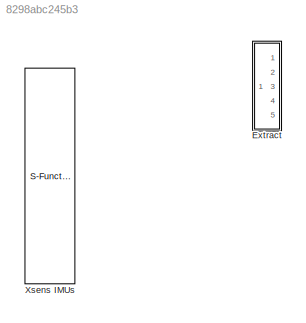
MODEL slx_8298abc245b3
KIND library
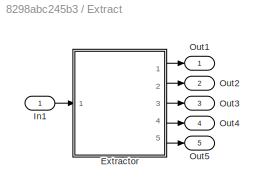
BLOCK [SubSystem] Extract
  Ports = [1, 5]
  RequestExecContextInheritance = off
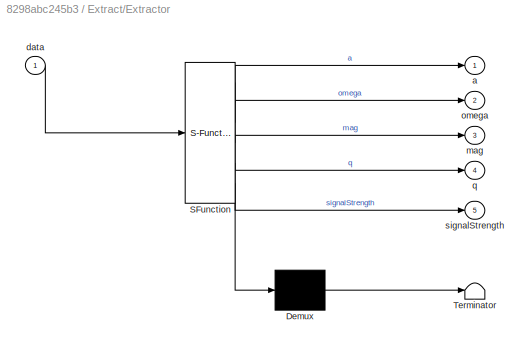
BLOCK [SubSystem] Extract/Extractor
  ErrorFcn = Stateflow.Translate.translate
  PermitHierarchicalResolution = ExplicitOnly
  Ports = [1, 5]
  RequestExecContextInheritance = off
  SFBlockType = MATLAB Function
  TreatAsAtomicUnit = on
BLOCK [Demux] Extract/Extractor/ Demux 
  Outputs = 1
  Ports = [1, 1]
BLOCK [S-Function] Extract/Extractor/ SFunction 
  EnableBusSupport = on
  FunctionName = sf_sfun
  Parameters = correction
  PortCounts = [1 6]
  Ports = [1, 6]
  Tag = Stateflow S-Function XsensLibrary 2
BLOCK [Terminator] Extract/Extractor/ Terminator 
BLOCK [Outport] Extract/Extractor/a
  IconDisplay = Port number
BLOCK [Inport] Extract/Extractor/data
  IconDisplay = Port number
BLOCK [Outport] Extract/Extractor/mag
  IconDisplay = Port number
  Port = 3
BLOCK [Outport] Extract/Extractor/omega
  IconDisplay = Port number
  Port = 2
BLOCK [Outport] Extract/Extractor/q
  IconDisplay = Port number
  Port = 4
BLOCK [Outport] Extract/Extractor/signalStrength
  IconDisplay = Port number
  Port = 5
BLOCK [Inport] Extract/In1
  IconDisplay = Port number
BLOCK [Outport] Extract/Out1
  IconDisplay = Port number
BLOCK [Outport] Extract/Out2
  IconDisplay = Port number
  Port = 2
BLOCK [Outport] Extract/Out3
  IconDisplay = Port number
  Port = 3
BLOCK [Outport] Extract/Out4
  IconDisplay = Port number
  Port = 4
BLOCK [Outport] Extract/Out5
  IconDisplay = Port number
  Port = 5
BLOCK [S-Function] Xsens IMUs
  EnableBusSupport = off
  FunctionName = ex_sfun_sci_xsens
  Parameters = uint8(SID00)', uint8(SID01)', uint8(SID02)', uint8(SID03)', uint8(SID04)', uint8(SID05)', uint8(SID06)', uint8(SID07)', uint8(SID08)', uint8(SID09)', uint8(SID10)', uint32(Freq), uint32(UseCalibratedValues), Ts
  Ports = [0, 10]
LINE Extract/Extractor:1 -> Extract/Out1:1
LINE Extract/Extractor:2 -> Extract/Out2:1
LINE Extract/Extractor:3 -> Extract/Out3:1
LINE Extract/Extractor:4 -> Extract/Out4:1
LINE Extract/Extractor:5 -> Extract/Out5:1
LINE Extract/In1:1 -> Extract/Extractor:1
CHART Extract/Extractor states=1 transitions=1
  STATE_LABEL 'eML_blk_kernel()'
  STATE_LABEL 'SCRIPT:\nfunction [a, omega, mag, q, signalStrength] = fcn(data, correction)\n%#codegen\n\nnewestDataSet = data(1:16);\n\nsampleNumber   = newestDataSet(1);\na_raw          = newestDataSet(2:4);\nomega_raw      = newestDataSet(5:7);\nmag_raw        = newestDataSet(8:10);\nq_raw          = newestDataSet(11:14);\nsignalStrength = newestDataSet(15);\nunknown        = newestDataSet(16);\n\n\npersistent lastSampleNum...<+474ch>'
